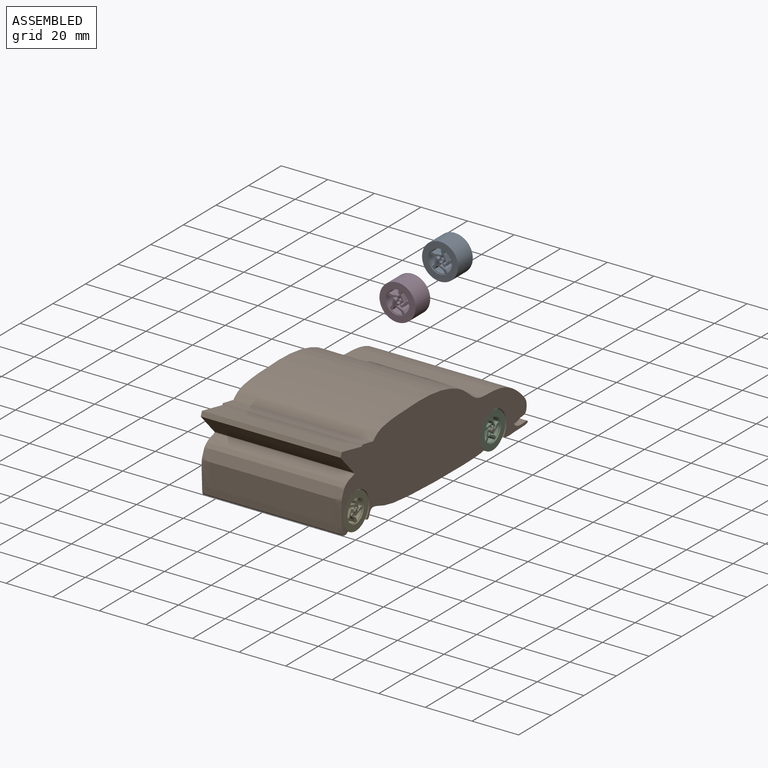
[diagram: assembled view]
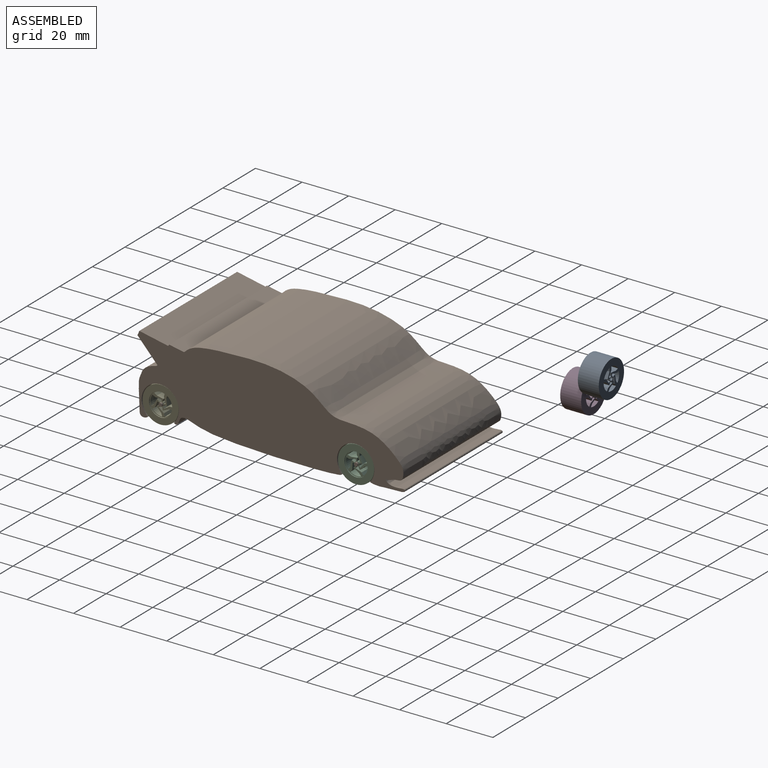
[diagram: assembled view, second angle]
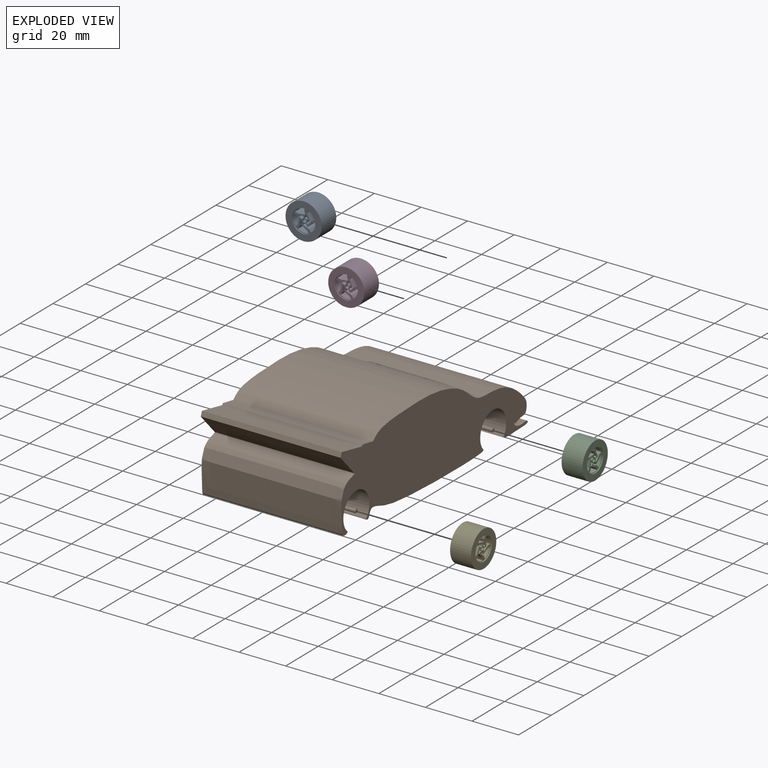
[diagram: exploded view]
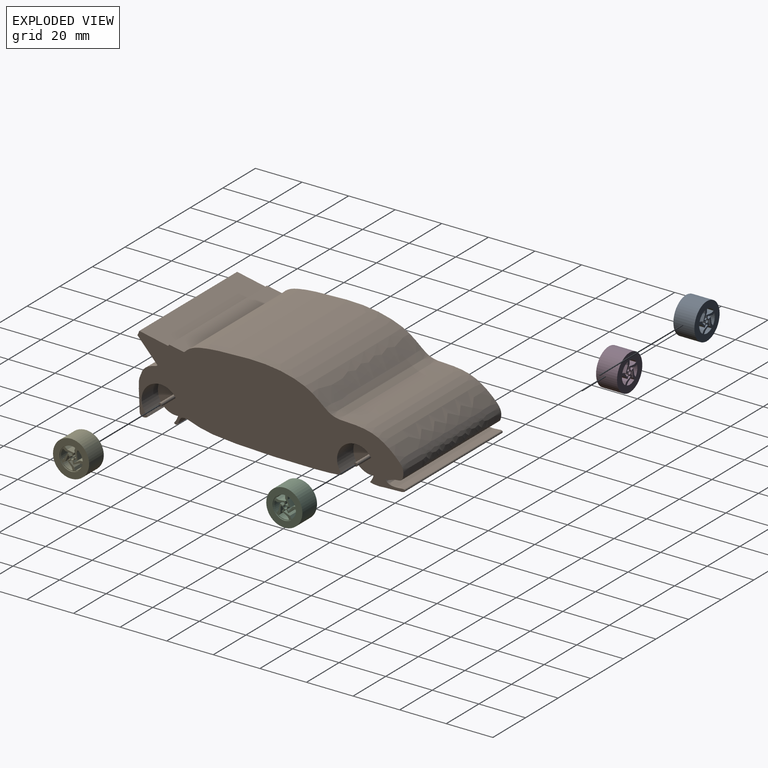
[diagram: exploded view, second angle]
ASSEMBLY  parts=5 mates=2
PART A: 46 faces, bbox 15.5x9x15.5 mm
  f0: cylinder r=4.75mm len=8.5mm, axis (0,1,0), area 41mm2, adj f7,f9,f29,f34
  f1: cylinder r=4.75mm len=8.5mm, axis (0,1,0), area 41mm2, adj f7,f9,f22,f28
  f2: cylinder r=4.75mm len=8.5mm, axis (0,1,0), area 41mm2, adj f7,f9,f17,f27
  f3: cylinder r=4.75mm len=8.5mm, axis (0,1,0), area 41mm2, adj f7,f9,f15,f16
  f4: cylinder r=5mm len=10mm, axis (0,1,0), area 15.7mm2, adj f6,f9
  f5: cylinder r=7.75mm len=15.5mm, axis (0,1,0), area 438.3mm2, adj f6,f7
  f6: plane 15.5x15.5mm, normal (0,-1,0), area 110.2mm2, adj f4,f5
  f7: plane 15.5x15.5mm, normal (0,1,0), area 140mm2, adj f0,f1,f2,f3,f5,f8,f10,f11
  f8: cylinder r=4.75mm len=8.5mm, axis (0,1,0), area 41mm2, adj f7,f9,f14,f35
  f9: plane 10x10mm, normal (0,-1,0), area 29.8mm2, adj f0,f1,f2,f3,f4,f8,f10,f11
  f10: plane 8.5x2.64mm, normal (0.37,0,0.93), area 24.1mm2, adj f7,f9,f11,f15
  f11: plane 8.5x0.8mm, normal (0.93,0,-0.37), area 7.3mm2, adj f7,f9,f10,f40
  f12: plane 8.5x1.06mm, normal (-0.74,0,0.67), area 12.2mm2, adj f7,f9,f13,f44
  f13: plane 8.5x2.55mm, normal (-0.49,0,-0.87), area 24.9mm2, adj f7,f9,f12,f14
  f14: plane 8.5x1.1mm, normal (-0.81,0,-0.59), area 11.5mm2, adj f7,f8,f9,f13
  f15: plane 8.5x1.06mm, normal (0.81,0,0.59), area 11.1mm2, adj f3,f7,f9,f10
  f16: plane 8.5x1.29mm, normal (0.31,0,-0.95), area 11.5mm2, adj f3,f7,f9,f21
  f17: plane 8.5x1.24mm, normal (-0.31,0,0.95), area 11.1mm2, adj f2,f7,f9,f18
  f18: plane 8.5x2.19mm, normal (-0.77,0,0.64), area 24.1mm2, adj f7,f9,f17,f19
  f19: plane 8.5x0.66mm, normal (0.64,0,0.77), area 7.3mm2, adj f7,f9,f18,f41
  f20: plane 8.5x1.24mm, normal (-0.87,0,-0.5), area 12.2mm2, adj f7,f9,f21,f40
  f21: plane 8.5x2.16mm, normal (0.68,0,-0.74), area 24.9mm2, adj f7,f9,f16,f20
  f22: plane 8.5x1.31mm, normal (-1,0,0), area 11.1mm2, adj f1,f7,f9,f23
  f23: plane 8.5x2.39mm, normal (-0.84,0,-0.54), area 24.1mm2, adj f7,f9,f22,f24
  f24: plane 8.5x0.72mm, normal (-0.54,0,0.84), area 7.3mm2, adj f7,f9,f23,f42
  f25: plane 8.5x1.4mm, normal (0.21,0,-0.98), area 12.2mm2, adj f7,f9,f26,f41
  f26: plane 8.5x2.66mm, normal (0.91,0,0.42), area 24.9mm2, adj f7,f9,f25,f27
  f27: plane 8.5x1.35mm, normal (1,0,0), area 11.5mm2, adj f2,f7,f9,f26
  f28: plane 8.5x1.29mm, normal (0.31,0,0.95), area 11.5mm2, adj f1,f7,f9,f33
  f29: plane 8.5x1.24mm, normal (-0.31,0,-0.95), area 11.1mm2, adj f0,f7,f9,f30
  f30: plane 8.5x2.74mm, normal (0.25,0,-0.97), area 24.1mm2, adj f7,f9,f29,f31
  f31: plane 8.5x0.83mm, normal (-0.97,0,-0.25), area 7.3mm2, adj f7,f9,f30,f43
  f32: plane 8.5x1.42mm, normal (0.99,0,-0.11), area 12.2mm2, adj f7,f9,f33,f42
  f33: plane 8.5x2.91mm, normal (-0.11,0,0.99), area 24.9mm2, adj f7,f9,f28,f32
  f34: plane 8.5x1.1mm, normal (-0.81,0,0.59), area 11.5mm2, adj f0,f7,f9,f39
  f35: plane 8.5x1.06mm, normal (0.81,0,-0.59), area 11.1mm2, adj f7,f8,f9,f36
  f36: plane 8.5x2.83mm, normal (1,0,-0.06), area 24.1mm2, adj f7,f9,f35,f37
  f37: plane 8.5x0.85mm, normal (-0.06,0,-1), area 7.3mm2, adj f7,f9,f36,f44
  f38: plane 8.5x1.31mm, normal (0.41,0,0.91), area 12.2mm2, adj f7,f9,f39,f43
  f39: plane 8.5x2.87mm, normal (-0.98,0,0.2), area 24.9mm2, adj f7,f9,f34,f38
  f40: cylinder r=1mm len=8.5mm, axis (0,1,0), area 7.8mm2, adj f7,f9,f11,f20
  f41: cylinder r=1mm len=8.5mm, axis (0,1,0), area 7.8mm2, adj f7,f9,f19,f25
  f42: cylinder r=1mm len=8.5mm, axis (0,1,0), area 7.8mm2, adj f7,f9,f24,f32
  f43: cylinder r=1mm len=8.5mm, axis (0,1,0), area 7.8mm2, adj f7,f9,f31,f38
  f44: cylinder r=1mm len=8.5mm, axis (0,1,0), area 7.8mm2, adj f7,f9,f12,f37
  f45: cylinder r=0.75mm len=8.5mm, axis (0,-1,0), area 40.1mm2, adj f7,f9
PART B: 29 faces, bbox 60x115.1x37 mm
  f0: plane 115.14x35.8mm, normal (-1,0,0), area 2742mm2, adj f1,f2,f3,f4,f5,f6,f7,f8
  f1: extruded ~72.09x60mm, area 4485mm2, adj f0,f10,f11,f12,f13,f15,f17,f19
  f2: extruded ~60x21.83mm, area 1742.1mm2, adj f0,f9,f10,f12,f13,f19
  f3: extruded ~60x14.94mm, area 1494.8mm2, adj f0,f4,f10,f11,f15,f17
  f4: extruded ~94.12x60mm, area 6833.9mm2, adj f0,f3,f5,f10
  f5: plane 60x6.41mm, normal (0,0.19,0.98), area 391.3mm2, adj f0,f4,f6,f10
  f6: plane 60x0.62mm, normal (0,-0.82,0.58), area 45.4mm2, adj f0,f5,f7,f10
  f7: plane 60x12.39mm, normal (0,0.2,0.98), area 758.5mm2, adj f0,f6,f8,f10
  f8: plane 60x1.92mm, normal (0,-0.93,0.37), area 124mm2, adj f0,f7,f9,f10
  f9: plane 60x9.24mm, normal (0,-0.73,-0.68), area 754.8mm2, adj f0,f2,f8,f10
  f10: plane 115.14x35.8mm, normal (1,0,0), area 2741.4mm2, adj f1,f2,f3,f4,f5,f6,f7,f8
  f11: cylinder r=8mm len=16mm, axis (-1,0,0), area 365.8mm2, adj f1,f3,f10,f16
  f12: cylinder r=8mm len=16mm, axis (-1,0,0), area 377.4mm2, adj f1,f2,f10,f14
  f13: cylinder r=8mm len=40mm, axis (-1,0,0), area 501mm2, adj f1,f2,f14,f20
  f14: plane 16x16mm, normal (1,0,0), area 199.3mm2, adj f12,f13,f25
  f15: cylinder r=8mm len=40mm, axis (-1,0,0), area 547.3mm2, adj f1,f3,f16,f18
  f16: plane 16x16mm, normal (1,0,0), area 199.3mm2, adj f11,f15,f27
  f17: extruded ~15.99x13.4mm, area 365.9mm2, adj f0,f1,f3,f18
  f18: plane 16.01x16.01mm, normal (-1,0,0), area 199.3mm2, adj f15,f17,f21
  f19: extruded ~15.99x13.94mm, area 377.5mm2, adj f0,f1,f2,f20
  f20: plane 16.01x16.01mm, normal (-1,0,0), area 199.3mm2, adj f13,f19,f23
  f21: cylinder r=0.75mm len=10mm, axis (1,0,0), area 47.1mm2, adj f18,f22
  f22: plane 1.5x1.5mm, normal (-1,0,0), area 1.8mm2, adj f21
  f23: cylinder r=0.75mm len=10mm, axis (1,0,0), area 47.1mm2, adj f20,f24
  f24: plane 1.5x1.5mm, normal (-1,0,0), area 1.8mm2, adj f23
  f25: cylinder r=0.75mm len=10mm, axis (-1,0,0), area 47.1mm2, adj f14,f26
  f26: plane 1.5x1.5mm, normal (1,0,0), area 1.8mm2, adj f25
  f27: cylinder r=0.75mm len=10mm, axis (-1,0,0), area 47.1mm2, adj f16,f28
  f28: plane 1.5x1.5mm, normal (1,0,0), area 1.8mm2, adj f27
PART C: same geometry as A
PART D: same geometry as A
PART E: same geometry as A
PLACE A t=(-22.06,29.43,56.5)mm
PLACE B t=(-19.39,-124.36,35.19)mm
PLACE C rot(axis=(0,0,1),90deg) t=(31.36,-36.47,29.5)mm
PLACE D t=(-30.77,15.76,43.54)mm
PLACE E rot(axis=(-0.58,0.58,0.58),120deg) t=(31.36,-120.39,30.22)mm
MATE cylindrical C.f45 <-> B.f11  axis (1,0,0) through (35.61,-36.47,29.5)mm
MATE cylindrical E.f45 <-> B.f12  axis (1,0,0) through (35.61,-120.39,30.22)mm
